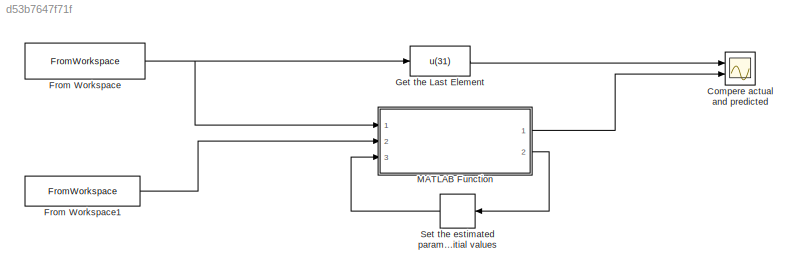
MODEL slx_d53b7647f71f
KIND model
CONFIG AbsTol = auto
CONFIG EnableMultiTasking = off
CONFIG FixedStep = 1
CONFIG MaxStep = auto
CONFIG MinStep = auto
CONFIG RelTol = 1e-3
CONFIG SampleTimeConstraint = Unconstrained
CONFIG Solver = FixedStepAuto
CONFIG SolverName = FixedStepAuto
CONFIG StartTime = 1939
CONFIG StopTime = 1970
BLOCK [Scope] Compere actual and predicted
  Floating = off
  NumInputPorts = 2
  Ports = [2]
  ScopeSpecificationString = Simulink.scopes.TimeScopeBlockCfg('CurrentConfiguration', extmgr.ConfigurationSet(extmgr.Configuration('Core','General UI',true),extmgr.Configuration('Core','Source UI',true),extmgr.Configuration('Sources','WiredSimulink',true,'DataLoggingVariableName','ScopeOut','DataLogging',true,'DataLoggingSaveFormat','StructureWithTime'),extmgr.Configuration('Visuals','Time Domain',true,'SerializedDisplays',{...<+1449ch>
BLOCK [FromWorkspace] From Workspace
  VariableName = ObsUnemployRate
BLOCK [FromWorkspace] From Workspace1
  VariableName = nGNP
BLOCK [Fcn] Get the Last Element
  Expr = u(31)
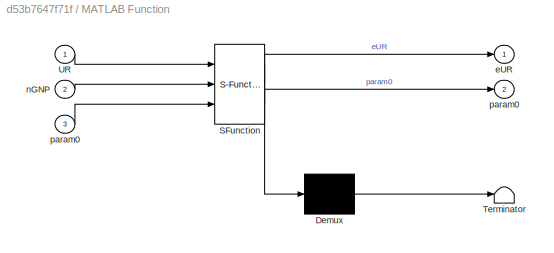
BLOCK [SubSystem] MATLAB Function
  ErrorFcn = Stateflow.Translate.translate
  PermitHierarchicalResolution = ExplicitOnly
  Ports = [3, 2]
  RequestExecContextInheritance = off
  SFBlockType = MATLAB Function
  TreatAsAtomicUnit = on
BLOCK [Demux] MATLAB Function/ Demux 
  Outputs = 1
  Ports = [1, 1]
BLOCK [S-Function] MATLAB Function/ SFunction 
  EnableBusSupport = off
  FunctionName = sf_sfun
  PortCounts = [3 3]
  Ports = [3, 3]
  SFcnIsStateOwnerBlock = off
  SFunctionDeploymentMode = off
  Tag = Stateflow S-Function 2
BLOCK [Terminator] MATLAB Function/ Terminator 
BLOCK [Inport] MATLAB Function/UR
BLOCK [Outport] MATLAB Function/eUR
BLOCK [Inport] MATLAB Function/nGNP
  Port = 2
BLOCK [Outport] MATLAB Function/param0
  Port = 2
BLOCK [Inport] MATLAB Function/param0 
  Port = 3
BLOCK [Delay] Set the estimated parameters as the next iteration of their initial values
  DelayLength = 1
  InitialCondition = [0.5; 0.1; -20]
  InputPortMap = u0
  Ports = [1, 1]
LINE From Workspace1:1 -> MATLAB Function:2
NET From Workspace:1 -> Get the Last Element:1, MATLAB Function:1
LINE Get the Last Element:1 -> Compere actual and predicted:1
LINE MATLAB Function:1 -> Compere actual and predicted:2
LINE MATLAB Function:2 -> Set the estimated parameters as the next iteration of their initial values:1
LINE Set the estimated parameters as the next iteration of their initial values:1 -> MATLAB Function:3
note: NET lines group one-source signal fan-out (src -> all destinations, sorted); 1:1 wires keep LINE
CHART MATLAB Function states=1 transitions=1
  STATE_LABEL 'eML_blk_kernel()'
  STATE_LABEL "SCRIPT:\nfunction [eUR, param0]  = SSM_Predictor(UR, nGNP, param0)\n\nyhat = 0; %#ok<NASGU> % WA because the analyzer cannot identify this data type for code generation\n% param0 = [0.5; 0.1; -20];\n\nZ = diff(log(nGNP));\ny = diff(UR);\n\ncoder.extrinsic('my_predict_fcn'); % declare extrinsic functions for code generation\n[yhat, param0] = my_predict_fcn(y, Z, param0);\n\neUR = yhat + UR(end);\n\n% MATLAB func...<+251ch>"
CHART  states=0 transitions=0
